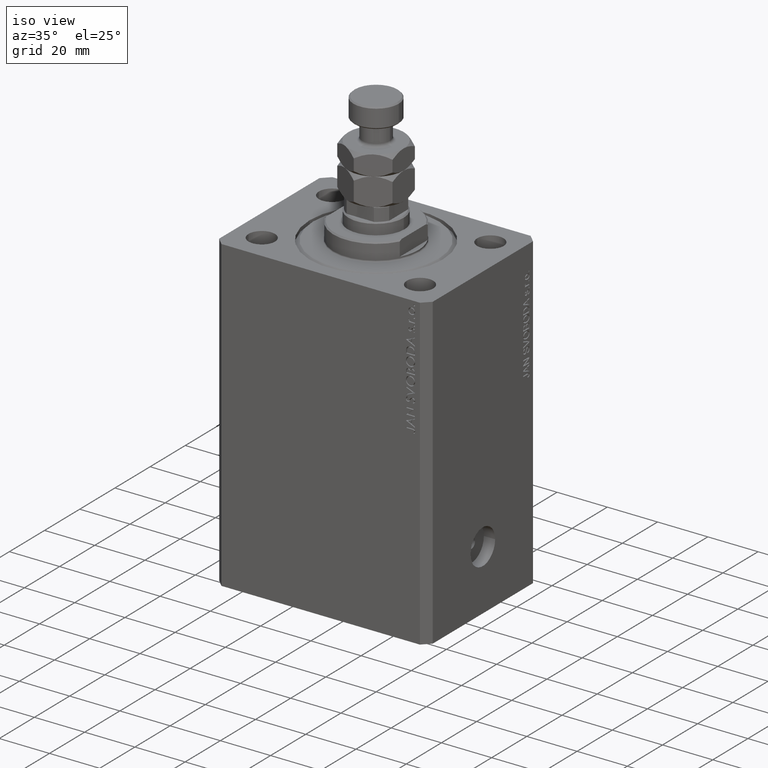
[diagram: clean part render]
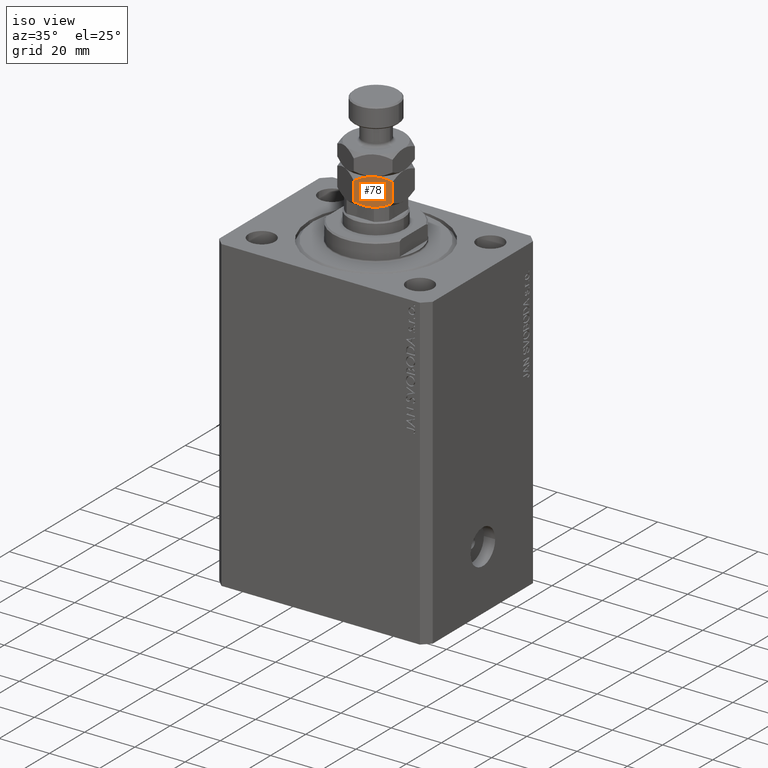
[diagram: same view with one face highlighted and labeled with its STEP entity id]
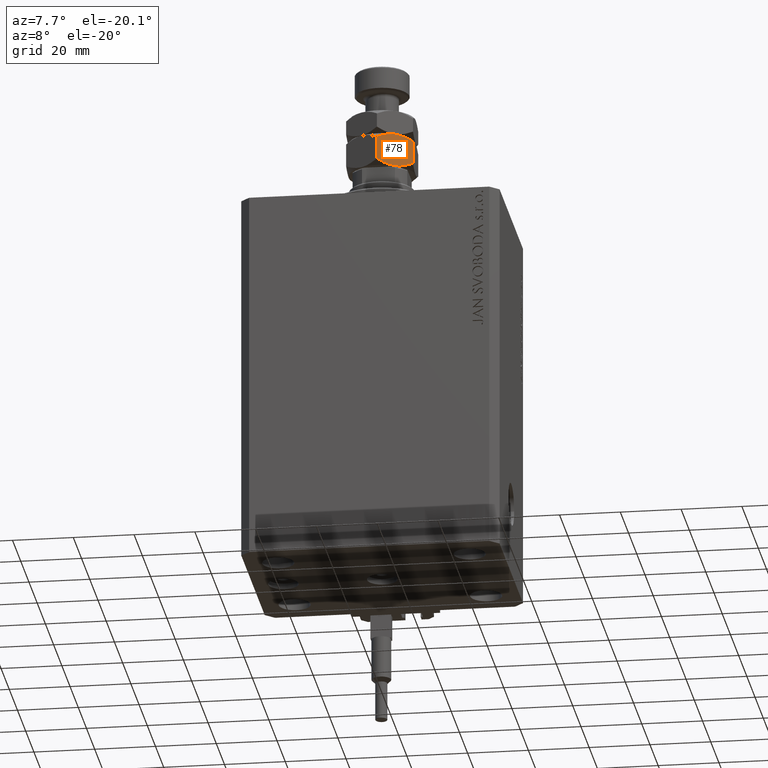
[diagram: same view with one face highlighted and labeled with its STEP entity id]
A machine part, iso view. The second image highlights one B-rep face of the part: STEP entity #78.
A second angle (auxiliary view) of the same face is appended — the face is thin or edge-on in the first view.
In plain terms, the highlighted planar face has unit normal (-0.5, 0.866, 0).
Its self-contained STEP definition (entity closure, byte-faithful):
#78 = ADVANCED_FACE ( 'NONE', ( #18845 ), #34216, .F. ) ;
#538 = CARTESIAN_POINT ( 'NONE',  ( 6.470625887979890578, -8.965888323921214820, 0.04365929743512345085 ) ) ;
#2978 = ORIENTED_EDGE ( 'NONE', *, *, #28563, .F. ) ;
#3586 = CARTESIAN_POINT ( 'NONE',  ( -1.735608132212364507E-15, -12.70170592217176342, 9.298294077828241910 ) ) ;
#3747 = DIRECTION ( 'NONE',  ( -0.8660254037844388186, -0.4999999999999996669, 0.000000000000000000 ) ) ;
#4898 = CARTESIAN_POINT ( 'NONE',  ( 4.543329525579419936, -10.07861339756131258, -1.661878642512936674E-15 ) ) ;
#5553 = ORIENTED_EDGE ( 'NONE', *, *, #17165, .F. ) ;
#5707 = VECTOR ( 'NONE', #19477, 1000.000000000000000 ) ;
#7399 = ORIENTED_EDGE ( 'NONE', *, *, #49386, .F. ) ;
#8326 = CARTESIAN_POINT ( 'NONE',  ( 9.255521992360788985, -7.358027808391763180, 0.7806233875467720740 ) ) ;
#8824 = CARTESIAN_POINT ( 'NONE',  ( 5.981709287746637571, -9.248164454677159085, -1.733029410082298494E-15 ) ) ;
#11831 = CARTESIAN_POINT ( 'NONE',  ( 7.884967580346608607, -8.149317767107183030, 0.3282192120904023902 ) ) ;
#11920 = CARTESIAN_POINT ( 'NONE',  ( 5.499999999999996447, -9.526279441628828337, 0.000000000000000000 ) ) ;
#13276 = AXIS2_PLACEMENT_3D ( 'NONE', #30426, #45787, #3747 ) ;
#14783 = CARTESIAN_POINT ( 'NONE',  ( 4.529374112020102316, -10.08667055933643475, 10.95634070256488179 ) ) ;
#14921 = ORIENTED_EDGE ( 'NONE', *, *, #46879, .F. ) ;
#15315 = CARTESIAN_POINT ( 'NONE',  ( 5.499999999999994671, -9.526279441628823008, 11.00000000000000000 ) ) ;
#17165 = EDGE_CURVE ( 'NONE', #35567, #34087, #28344, .T. ) ;
#18396 = LINE ( 'NONE', #37795, #26196 ) ;
#18845 = FACE_OUTER_BOUND ( 'NONE', #21006, .T. ) ;
#18880 = CARTESIAN_POINT ( 'NONE',  ( -2.056508384864602535E-15, -12.70170592217176342, 1.701705922171757868 ) ) ;
#19477 = DIRECTION ( 'NONE',  ( -0.000000000000000000, -0.000000000000000000, -1.000000000000000000 ) ) ;
#19997 = CARTESIAN_POINT ( 'NONE',  ( 0.8614806024966409348, -12.20432986441868550, 1.204329864418603124 ) ) ;
#20252 = CARTESIAN_POINT ( 'NONE',  ( 1.748214531935804672, -11.69237379155741330, 0.7776848045220248196 ) ) ;
#21006 = EDGE_LOOP ( 'NONE', ( #2978, #7399, #14921, #41722, #47386, #5553 ) ) ;
#22332 = CARTESIAN_POINT ( 'NONE',  ( 1.744478007639205241, -11.69453107486588728, 10.21937661245323170 ) ) ;
#23684 = CARTESIAN_POINT ( 'NONE',  ( 7.420105971005177992, -8.417705742396378810, 0.2081220748670716547 ) ) ;
#24262 = VERTEX_POINT ( 'NONE', #15315 ) ;
#24375 = CARTESIAN_POINT ( 'NONE',  ( 9.251785468064188223, -7.360185091700238935, 10.22231519547797163 ) ) ;
#25385 = CARTESIAN_POINT ( 'NONE',  ( -1.735608132212364507E-15, -12.70170592217176342, 9.298294077828241910 ) ) ;
#25881 = CARTESIAN_POINT ( 'NONE',  ( 0.8624791307172111621, -12.20375336388174503, 9.796246636118258522 ) ) ;
#26196 = VECTOR ( 'NONE', #30477, 1000.000000000000000 ) ;
#26233 = CARTESIAN_POINT ( 'NONE',  ( 11.00000000000000000, -6.350852961085885262, 1.701705922171761864 ) ) ;
#27463 = CARTESIAN_POINT ( 'NONE',  ( 5.499999999999996447, -9.526279441628828337, 0.000000000000000000 ) ) ;
#28344 = B_SPLINE_CURVE_WITH_KNOTS ( 'NONE', 3,
 ( #11920, #4898, #47454, #20252, #19997, #35376 ),
 .UNSPECIFIED., .F., .F.,
 ( 4, 2, 4 ),
 ( 0.006583488920348303831, 0.009852050593448714866, 0.01312061226654912503 ),
 .UNSPECIFIED. ) ;
#28563 = EDGE_CURVE ( 'NONE', #32920, #35567, #33687, .T. ) ;
#29407 = CARTESIAN_POINT ( 'NONE',  ( 5.018290712253354435, -9.804394428580495813, 11.00000000000000178 ) ) ;
#30426 = CARTESIAN_POINT ( 'NONE',  ( -2.168404344971008868E-15, -12.70170592217176342, 11.00000000000000000 ) ) ;
#30477 = DIRECTION ( 'NONE',  ( -0.000000000000000000, -0.000000000000000000, -1.000000000000000000 ) ) ;
#31509 = CARTESIAN_POINT ( 'NONE',  ( 11.00000000000000000, -6.350852961085885262, 1.701705922171761864 ) ) ;
#32920 = VERTEX_POINT ( 'NONE', #26233 ) ;
#32931 = CARTESIAN_POINT ( 'NONE',  ( 5.499999999999994671, -9.526279441628823008, 11.00000000000000000 ) ) ;
#32985 = VERTEX_POINT ( 'NONE', #3586 ) ;
#33687 = B_SPLINE_CURVE_WITH_KNOTS ( 'NONE', 3,
 ( #31509, #39811, #8326, #11831, #23684, #538, #8824, #27463 ),
 .UNSPECIFIED., .F., .F.,
 ( 4, 2, 2, 4 ),
 ( 2.544311317612473652E-07, 0.003291871675740032539, 0.004937680298044168185, 0.006583488920348303831 ),
 .UNSPECIFIED. ) ;
#34087 = VERTEX_POINT ( 'NONE', #18880 ) ;
#34216 = PLANE ( 'NONE',  #13276 ) ;
#35376 = CARTESIAN_POINT ( 'NONE',  ( -2.056508384864602535E-15, -12.70170592217176342, 1.701705922171757868 ) ) ;
#35567 = VERTEX_POINT ( 'NONE', #45632 ) ;
#36222 = CARTESIAN_POINT ( 'NONE',  ( 11.00000000000000000, -6.350852961085885262, 9.298294077828238358 ) ) ;
#36956 = CARTESIAN_POINT ( 'NONE',  ( 6.456670474420572070, -8.973945485696336988, 11.00000000000000711 ) ) ;
#37795 = CARTESIAN_POINT ( 'NONE',  ( -2.168404344971008868E-15, -12.70170592217176342, 11.00000000000000000 ) ) ;
#38112 = LINE ( 'NONE', #46427, #5707 ) ;
#38329 = EDGE_CURVE ( 'NONE', #32985, #34087, #18396, .T. ) ;
#39024 = B_SPLINE_CURVE_WITH_KNOTS ( 'NONE', 3,
 ( #25385, #25881, #22332, #40774, #44774, #14783, #29407, #48561 ),
 .UNSPECIFIED., .F., .F.,
 ( 4, 2, 2, 4 ),
 ( 2.544311317609507449E-07, 0.003291871675740027335, 0.004937680298044161246, 0.006583488920348296025 ),
 .UNSPECIFIED. ) ;
#39509 = CARTESIAN_POINT ( 'NONE',  ( 11.00000000000000000, -6.350852961085885262, 9.298294077828238358 ) ) ;
#39811 = CARTESIAN_POINT ( 'NONE',  ( 10.13752086928278118, -6.848805519375901874, 1.203753363881747029 ) ) ;
#40774 = CARTESIAN_POINT ( 'NONE',  ( 3.115032419653385176, -10.90324111615047364, 10.67178078790959717 ) ) ;
#41353 = VERTEX_POINT ( 'NONE', #39509 ) ;
#41722 = ORIENTED_EDGE ( 'NONE', *, *, #43373, .F. ) ;
#43373 = EDGE_CURVE ( 'NONE', #32985, #24262, #39024, .T. ) ;
#44007 = CARTESIAN_POINT ( 'NONE',  ( 10.13851939750335696, -6.848229018838962290, 9.795670135581396210 ) ) ;
#44774 = CARTESIAN_POINT ( 'NONE',  ( 3.579894028994816235, -10.63485314086127431, 10.79187792513292798 ) ) ;
#45632 = CARTESIAN_POINT ( 'NONE',  ( 5.499999999999996447, -9.526279441628828337, 0.000000000000000000 ) ) ;
#45787 = DIRECTION ( 'NONE',  ( -0.4999999999999996669, 0.8660254037844388186, 0.000000000000000000 ) ) ;
#46427 = CARTESIAN_POINT ( 'NONE',  ( 11.00000000000000000, -6.350852961085885262, 11.00000000000000000 ) ) ;
#46652 = B_SPLINE_CURVE_WITH_KNOTS ( 'NONE', 3,
 ( #32931, #36956, #48537, #24375, #44007, #36222 ),
 .UNSPECIFIED., .F., .F.,
 ( 4, 2, 4 ),
 ( 0.006583488920348296025, 0.009852050593448711396, 0.01312061226654912677 ),
 .UNSPECIFIED. ) ;
#46879 = EDGE_CURVE ( 'NONE', #24262, #41353, #46652, .T. ) ;
#47386 = ORIENTED_EDGE ( 'NONE', *, *, #38329, .T. ) ;
#47454 = CARTESIAN_POINT ( 'NONE',  ( 3.602926119288148321, -10.62155555733041545, 0.1689086083647563796 ) ) ;
#48537 = CARTESIAN_POINT ( 'NONE',  ( 7.397073880711846350, -8.431003325927232339, 10.83109139163524404 ) ) ;
#48561 = CARTESIAN_POINT ( 'NONE',  ( 5.499999999999994671, -9.526279441628823008, 11.00000000000000000 ) ) ;
#49386 = EDGE_CURVE ( 'NONE', #41353, #32920, #38112, .T. ) ;